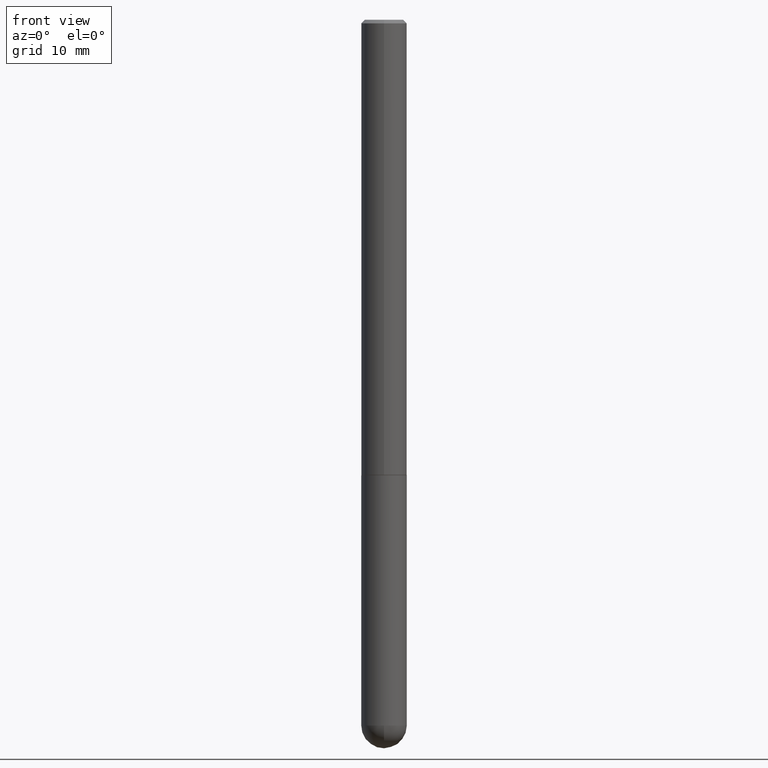
[diagram: clean part render]
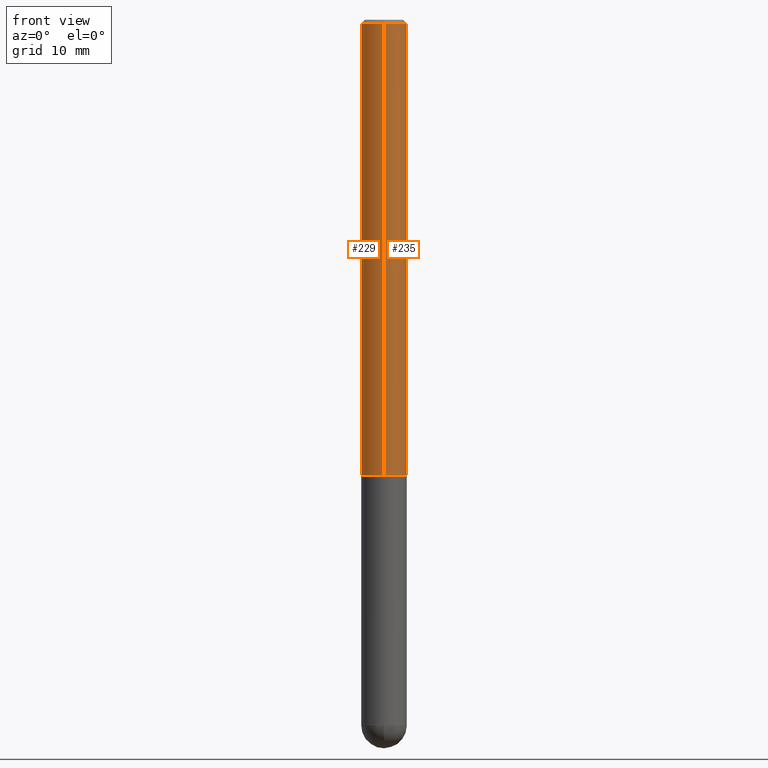
[diagram: same view with one multi-face feature highlighted, each face labeled with its STEP entity id]
A machine part, front view. The highlighted faces form ONE feature: a constant-radius fillet chain: 2 tangent blend faces with common blend radius 3.175 mm. The faces share edges in the B-rep.
Their STEP definitions:
[1] entity #229 (Cylinder):
#2 = VERTEX_POINT ( 'NONE', #186 ) ;
#16 = EDGE_CURVE ( 'NONE', #304, #207, #155, .T. ) ;
#22 = ORIENTED_EDGE ( 'NONE', *, *, #16, .F. ) ;
#27 = VERTEX_POINT ( 'NONE', #353 ) ;
#31 = DIRECTION ( 'NONE',  ( -2.445655450108679082E-29, 3.491214054121520398E-15, 1.000000000000000000 ) ) ;
#32 = CARTESIAN_POINT ( 'NONE',  ( 8.881784197001260212E-16, 0.1250000000000001388, -4.364017567651904935E-16 ) ) ;
#44 = DIRECTION ( 'NONE',  ( -2.445655450108679082E-29, 3.491214054121520398E-15, 1.000000000000000000 ) ) ;
#56 = CIRCLE ( 'NONE', #403, 0.1250000000000002776 ) ;
#67 = LINE ( 'NONE', #196, #116 ) ;
#82 = DIRECTION ( 'NONE',  ( -6.982962677686265922E-15, -1.000000000000000000, 3.491214054121520004E-15 ) ) ;
#97 = VECTOR ( 'NONE', #31, 39.37007874015748143 ) ;
#107 = CYLINDRICAL_SURFACE ( 'NONE', #243, 0.1250000000000001388 ) ;
#116 = VECTOR ( 'NONE', #44, 39.37007874015748143 ) ;
#117 = ORIENTED_EDGE ( 'NONE', *, *, #181, .T. ) ;
#138 = DIRECTION ( 'NONE',  ( -2.445655450108679082E-29, 3.491214054121520398E-15, 1.000000000000000000 ) ) ;
#155 = LINE ( 'NONE', #32, #97 ) ;
#170 = DIRECTION ( 'NONE',  ( -2.445655450108679082E-29, 3.491214054121520398E-15, 1.000000000000000000 ) ) ;
#171 = FACE_OUTER_BOUND ( 'NONE', #276, .T. ) ;
#173 = ORIENTED_EDGE ( 'NONE', *, *, #355, .F. ) ;
#177 = CARTESIAN_POINT ( 'NONE',  ( 0.000000000000000000, 0.000000000000000000, 0.000000000000000000 ) ) ;
#181 = EDGE_CURVE ( 'NONE', #2, #27, #67, .T. ) ;
#186 = CARTESIAN_POINT ( 'NONE',  ( -8.728703347107241743E-16, -0.1250000000000090206, -2.498999999999999666 ) ) ;
#192 = CIRCLE ( 'NONE', #244, 0.1249999999999999861 ) ;
#196 = CARTESIAN_POINT ( 'NONE',  ( -8.728703347107842263E-16, -0.1250000000000001388, 4.364017567651904935E-16 ) ) ;
#207 = VERTEX_POINT ( 'NONE', #303 ) ;
#213 = CARTESIAN_POINT ( 'NONE',  ( 8.881784197001571812E-16, 0.1249999999999915484, -2.499000000000000998 ) ) ;
#214 = ORIENTED_EDGE ( 'NONE', *, *, #307, .T. ) ;
#217 = DIRECTION ( 'NONE',  ( -2.445655450108679082E-29, 3.491214054121520398E-15, 1.000000000000000000 ) ) ;
#229 = ADVANCED_FACE ( 'NONE', ( #171 ), #107, .T. ) ;
#243 = AXIS2_PLACEMENT_3D ( 'NONE', #177, #170, #82 ) ;
#244 = AXIS2_PLACEMENT_3D ( 'NONE', #387, #217, #311 ) ;
#271 = DIRECTION ( 'NONE',  ( -6.982962677686266711E-15, -1.000000000000000000, 4.370956789862811683E-15 ) ) ;
#276 = EDGE_LOOP ( 'NONE', ( #22, #214, #117, #173 ) ) ;
#302 = CARTESIAN_POINT ( 'NONE',  ( 6.111692969821589425E-29, -8.724543921249680758E-15, -2.499000000000000110 ) ) ;
#303 = CARTESIAN_POINT ( 'NONE',  ( 8.728703347107836346E-16, 0.1249999999999999167, -0.02000000000000046185 ) ) ;
#304 = VERTEX_POINT ( 'NONE', #213 ) ;
#307 = EDGE_CURVE ( 'NONE', #304, #2, #56, .T. ) ;
#311 = DIRECTION ( 'NONE',  ( -6.982962677686265922E-15, -1.000000000000000000, 3.483106191921935949E-15 ) ) ;
#353 = CARTESIAN_POINT ( 'NONE',  ( -8.575622497214407550E-16, -0.1250000000000000555, -0.01999999999999959102 ) ) ;
#355 = EDGE_CURVE ( 'NONE', #207, #27, #192, .T. ) ;
#387 = CARTESIAN_POINT ( 'NONE',  ( 4.891310900217364470E-31, -6.982428108243048636E-17, -0.02000000000000002470 ) ) ;
#403 = AXIS2_PLACEMENT_3D ( 'NONE', #302, #138, #271 ) ;
[2] entity #235 (Cylinder):
#2 = VERTEX_POINT ( 'NONE', #186 ) ;
#16 = EDGE_CURVE ( 'NONE', #304, #207, #155, .T. ) ;
#18 = CARTESIAN_POINT ( 'NONE',  ( 0.000000000000000000, 0.000000000000000000, 0.000000000000000000 ) ) ;
#19 = ORIENTED_EDGE ( 'NONE', *, *, #265, .F. ) ;
#21 = FACE_OUTER_BOUND ( 'NONE', #93, .T. ) ;
#23 = DIRECTION ( 'NONE',  ( -2.445655450108679082E-29, 3.491214054121520398E-15, 1.000000000000000000 ) ) ;
#27 = VERTEX_POINT ( 'NONE', #353 ) ;
#31 = DIRECTION ( 'NONE',  ( -2.445655450108679082E-29, 3.491214054121520398E-15, 1.000000000000000000 ) ) ;
#32 = CARTESIAN_POINT ( 'NONE',  ( 8.881784197001260212E-16, 0.1250000000000001388, -4.364017567651904935E-16 ) ) ;
#44 = DIRECTION ( 'NONE',  ( -2.445655450108679082E-29, 3.491214054121520398E-15, 1.000000000000000000 ) ) ;
#50 = DIRECTION ( 'NONE',  ( -2.445655450108679082E-29, 3.491214054121520398E-15, 1.000000000000000000 ) ) ;
#64 = AXIS2_PLACEMENT_3D ( 'NONE', #112, #50, #344 ) ;
#67 = LINE ( 'NONE', #196, #116 ) ;
#80 = EDGE_CURVE ( 'NONE', #2, #304, #367, .T. ) ;
#93 = EDGE_LOOP ( 'NONE', ( #110, #360, #19, #113 ) ) ;
#97 = VECTOR ( 'NONE', #31, 39.37007874015748143 ) ;
#110 = ORIENTED_EDGE ( 'NONE', *, *, #80, .T. ) ;
#112 = CARTESIAN_POINT ( 'NONE',  ( 4.891310900217364470E-31, -6.982428108243048636E-17, -0.02000000000000002470 ) ) ;
#113 = ORIENTED_EDGE ( 'NONE', *, *, #181, .F. ) ;
#116 = VECTOR ( 'NONE', #44, 39.37007874015748143 ) ;
#139 = CYLINDRICAL_SURFACE ( 'NONE', #358, 0.1250000000000001388 ) ;
#155 = LINE ( 'NONE', #32, #97 ) ;
#181 = EDGE_CURVE ( 'NONE', #2, #27, #67, .T. ) ;
#186 = CARTESIAN_POINT ( 'NONE',  ( -8.728703347107241743E-16, -0.1250000000000090206, -2.498999999999999666 ) ) ;
#196 = CARTESIAN_POINT ( 'NONE',  ( -8.728703347107842263E-16, -0.1250000000000001388, 4.364017567651904935E-16 ) ) ;
#203 = DIRECTION ( 'NONE',  ( -2.445655450108679082E-29, 3.491214054121520398E-15, 1.000000000000000000 ) ) ;
#207 = VERTEX_POINT ( 'NONE', #303 ) ;
#213 = CARTESIAN_POINT ( 'NONE',  ( 8.881784197001571812E-16, 0.1249999999999915484, -2.499000000000000998 ) ) ;
#218 = AXIS2_PLACEMENT_3D ( 'NONE', #330, #203, #227 ) ;
#227 = DIRECTION ( 'NONE',  ( -6.982962677686266711E-15, -1.000000000000000000, 4.370956789862811683E-15 ) ) ;
#235 = ADVANCED_FACE ( 'NONE', ( #21 ), #139, .T. ) ;
#265 = EDGE_CURVE ( 'NONE', #27, #207, #280, .T. ) ;
#280 = CIRCLE ( 'NONE', #64, 0.1249999999999999861 ) ;
#303 = CARTESIAN_POINT ( 'NONE',  ( 8.728703347107836346E-16, 0.1249999999999999167, -0.02000000000000046185 ) ) ;
#304 = VERTEX_POINT ( 'NONE', #213 ) ;
#330 = CARTESIAN_POINT ( 'NONE',  ( 6.111692969821589425E-29, -8.724543921249680758E-15, -2.499000000000000110 ) ) ;
#344 = DIRECTION ( 'NONE',  ( -6.982962677686265922E-15, -1.000000000000000000, 3.483106191921935949E-15 ) ) ;
#353 = CARTESIAN_POINT ( 'NONE',  ( -8.575622497214407550E-16, -0.1250000000000000555, -0.01999999999999959102 ) ) ;
#358 = AXIS2_PLACEMENT_3D ( 'NONE', #18, #23, #406 ) ;
#360 = ORIENTED_EDGE ( 'NONE', *, *, #16, .T. ) ;
#367 = CIRCLE ( 'NONE', #218, 0.1250000000000002776 ) ;
#406 = DIRECTION ( 'NONE',  ( -6.982962677686265922E-15, -1.000000000000000000, 3.491214054121520004E-15 ) ) ;